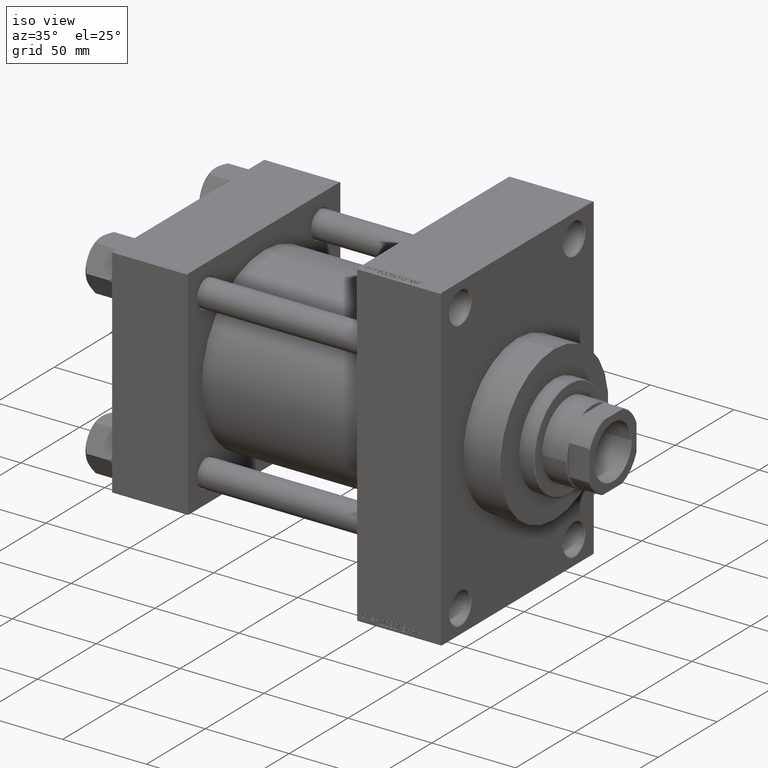
[diagram: clean part render]
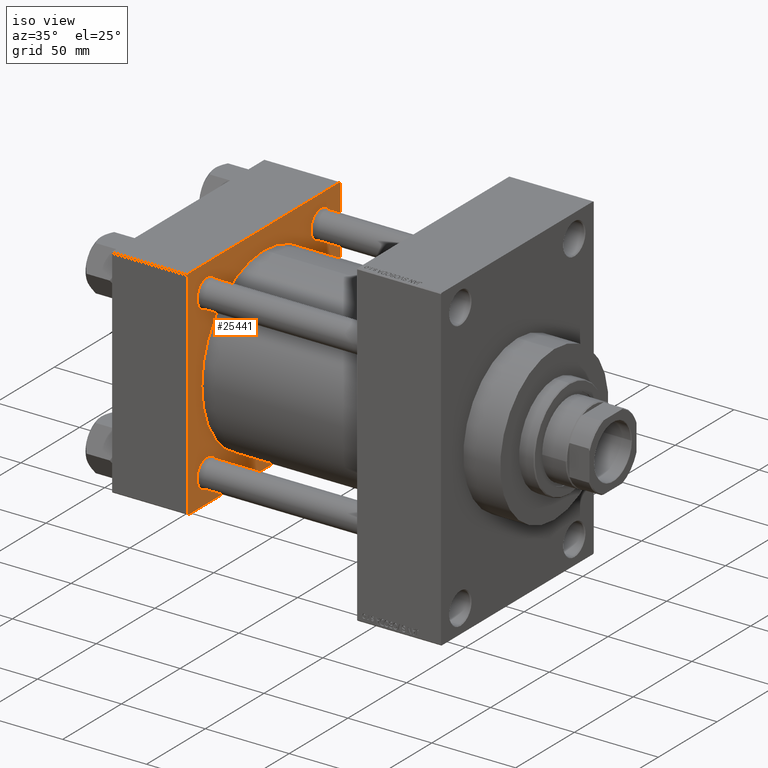
[diagram: same view with one face highlighted and labeled with its STEP entity id]
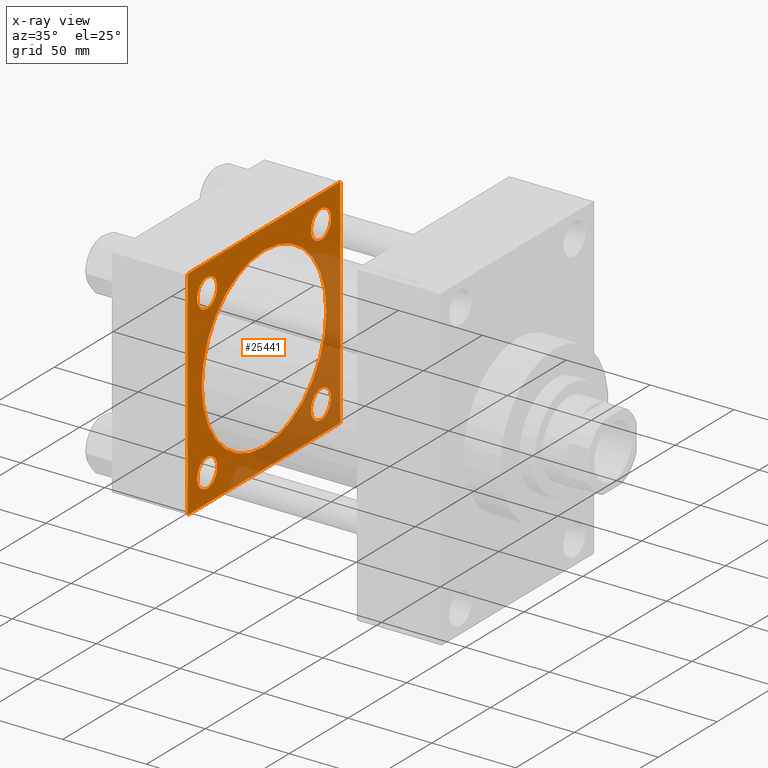
[diagram: x-ray of the same camera — body ghosted, the highlighted face saturated]
A machine part, iso view. The second image highlights one B-rep face of the part: STEP entity #25441.
The next image is the same camera in x-ray: the body ghosted, the highlighted face saturated — about 34% of this face is hidden behind the body in this view.
In plain terms, the highlighted planar face has unit normal (-1, 0, 0).
Its self-contained STEP definition (entity closure, byte-faithful):
#676 = VECTOR ( 'NONE', #15679, 1000.000000000000114 ) ;
#763 = CARTESIAN_POINT ( 'NONE',  ( 45.00000000000000000, -65.00000000000000000, 65.00000000000000000 ) ) ;
#1618 = FACE_BOUND ( 'NONE', #37617, .T. ) ;
#1727 = VERTEX_POINT ( 'NONE', #39099 ) ;
#1959 = LINE ( 'NONE', #20765, #12129 ) ;
#2046 = AXIS2_PLACEMENT_3D ( 'NONE', #40862, #25212, #7127 ) ;
#2229 = ORIENTED_EDGE ( 'NONE', *, *, #28335, .T. ) ;
#2654 = ORIENTED_EDGE ( 'NONE', *, *, #8936, .F. ) ;
#2858 = EDGE_CURVE ( 'NONE', #25911, #19225, #37173, .T. ) ;
#2925 = ORIENTED_EDGE ( 'NONE', *, *, #46715, .T. ) ;
#3209 = DIRECTION ( 'NONE',  ( 0.000000000000000000, 0.000000000000000000, 1.000000000000000000 ) ) ;
#3232 = CARTESIAN_POINT ( 'NONE',  ( 45.00000000000000000, 48.45000000000000995, 48.45000000000001705 ) ) ;
#3279 = EDGE_CURVE ( 'NONE', #5673, #31249, #30806, .T. ) ;
#4143 = DIRECTION ( 'NONE',  ( 0.000000000000000000, 0.000000000000000000, -1.000000000000000000 ) ) ;
#4632 = EDGE_CURVE ( 'NONE', #13992, #6380, #6419, .T. ) ;
#4764 = FACE_BOUND ( 'NONE', #10822, .T. ) ;
#5038 = ORIENTED_EDGE ( 'NONE', *, *, #25068, .T. ) ;
#5528 = DIRECTION ( 'NONE',  ( 0.000000000000000000, -1.000000000000000000, -1.067522139062650425E-16 ) ) ;
#5603 = VERTEX_POINT ( 'NONE', #30971 ) ;
#5673 = VERTEX_POINT ( 'NONE', #34598 ) ;
#6380 = VERTEX_POINT ( 'NONE', #12314 ) ;
#6419 = LINE ( 'NONE', #10037, #21596 ) ;
#6494 = ORIENTED_EDGE ( 'NONE', *, *, #31416, .T. ) ;
#6801 = VERTEX_POINT ( 'NONE', #34185 ) ;
#6941 = EDGE_CURVE ( 'NONE', #5603, #35964, #25004, .T. ) ;
#7098 = VERTEX_POINT ( 'NONE', #9725 ) ;
#7127 = DIRECTION ( 'NONE',  ( 0.000000000000000000, 0.000000000000000000, 1.000000000000000000 ) ) ;
#7218 = EDGE_LOOP ( 'NONE', ( #32874, #22260 ) ) ;
#7492 = DIRECTION ( 'NONE',  ( -0.000000000000000000, 0.7071067811865474617, 0.7071067811865474617 ) ) ;
#7780 = VERTEX_POINT ( 'NONE', #40149 ) ;
#8385 = FACE_BOUND ( 'NONE', #7218, .T. ) ;
#8670 = EDGE_CURVE ( 'NONE', #7780, #6380, #36662, .T. ) ;
#8936 = EDGE_CURVE ( 'NONE', #7780, #25013, #24084, .T. ) ;
#9054 = ORIENTED_EDGE ( 'NONE', *, *, #2858, .T. ) ;
#9123 = CARTESIAN_POINT ( 'NONE',  ( 45.00000000000000000, 48.45000000000000995, -48.45000000000001705 ) ) ;
#9290 = CARTESIAN_POINT ( 'NONE',  ( 45.00000000000000000, -48.44999999999999574, -48.45000000000003126 ) ) ;
#9372 = CARTESIAN_POINT ( 'NONE',  ( 45.00000000000000000, -2.602085213965210642E-15, 0.000000000000000000 ) ) ;
#9718 = LINE ( 'NONE', #36866, #45172 ) ;
#9725 = CARTESIAN_POINT ( 'NONE',  ( 45.00000000000000000, -48.44999999999999574, 39.95000000000004547 ) ) ;
#9841 = CARTESIAN_POINT ( 'NONE',  ( 45.00000000000000000, -48.44999999999999574, 48.45000000000003126 ) ) ;
#9933 = CARTESIAN_POINT ( 'NONE',  ( 45.00000000000000000, 48.45000000000000995, -39.95000000000003126 ) ) ;
#10037 = CARTESIAN_POINT ( 'NONE',  ( 45.00000000000000000, 65.00000000000000000, 65.00000000000001421 ) ) ;
#10504 = DIRECTION ( 'NONE',  ( 0.000000000000000000, 0.000000000000000000, -1.000000000000000000 ) ) ;
#10541 = EDGE_CURVE ( 'NONE', #29911, #19939, #14050, .T. ) ;
#10559 = CARTESIAN_POINT ( 'NONE',  ( 45.00000000000000000, -48.44999999999999574, 56.95000000000000995 ) ) ;
#10822 = EDGE_LOOP ( 'NONE', ( #26075, #17868 ) ) ;
#10908 = AXIS2_PLACEMENT_3D ( 'NONE', #9372, #19956, #23827 ) ;
#10936 = DIRECTION ( 'NONE',  ( -1.000000000000000000, 0.000000000000000000, -0.000000000000000000 ) ) ;
#12129 = VECTOR ( 'NONE', #20997, 1000.000000000000000 ) ;
#12314 = CARTESIAN_POINT ( 'NONE',  ( 45.00000000000000000, 65.00000000000000000, -64.49999999999995737 ) ) ;
#12937 = VERTEX_POINT ( 'NONE', #45735 ) ;
#13416 = EDGE_CURVE ( 'NONE', #1727, #6801, #28775, .T. ) ;
#13447 = DIRECTION ( 'NONE',  ( 0.000000000000000000, 0.000000000000000000, 1.000000000000000000 ) ) ;
#13672 = CIRCLE ( 'NONE', #45212, 8.499999999999980460 ) ;
#13992 = VERTEX_POINT ( 'NONE', #36575 ) ;
#14050 = CIRCLE ( 'NONE', #14827, 8.499999999999980460 ) ;
#14145 = VERTEX_POINT ( 'NONE', #18952 ) ;
#14250 = EDGE_LOOP ( 'NONE', ( #44821, #19632 ) ) ;
#14548 = CARTESIAN_POINT ( 'NONE',  ( 45.00000000000000000, -64.49999999999994316, -65.00000000000000000 ) ) ;
#14827 = AXIS2_PLACEMENT_3D ( 'NONE', #3232, #21787, #17700 ) ;
#15635 = ORIENTED_EDGE ( 'NONE', *, *, #4632, .F. ) ;
#15679 = DIRECTION ( 'NONE',  ( 0.000000000000000000, -0.7071067811865474617, 0.7071067811865474617 ) ) ;
#16085 = FACE_BOUND ( 'NONE', #14250, .T. ) ;
#16502 = DIRECTION ( 'NONE',  ( 0.000000000000000000, 0.000000000000000000, 1.000000000000000000 ) ) ;
#17700 = DIRECTION ( 'NONE',  ( 0.000000000000000000, 0.000000000000000000, 1.000000000000000000 ) ) ;
#17868 = ORIENTED_EDGE ( 'NONE', *, *, #46949, .T. ) ;
#18292 = CIRCLE ( 'NONE', #20589, 8.499999999999980460 ) ;
#18637 = DIRECTION ( 'NONE',  ( 0.000000000000000000, 0.000000000000000000, 1.000000000000000000 ) ) ;
#18952 = CARTESIAN_POINT ( 'NONE',  ( 45.00000000000000000, -64.49999999999997158, 65.00000000000000000 ) ) ;
#19225 = VERTEX_POINT ( 'NONE', #32366 ) ;
#19256 = VECTOR ( 'NONE', #4143, 1000.000000000000000 ) ;
#19532 = AXIS2_PLACEMENT_3D ( 'NONE', #9290, #46644, #16502 ) ;
#19632 = ORIENTED_EDGE ( 'NONE', *, *, #31144, .F. ) ;
#19939 = VERTEX_POINT ( 'NONE', #43874 ) ;
#19956 = DIRECTION ( 'NONE',  ( 1.000000000000000000, -0.000000000000000000, 0.000000000000000000 ) ) ;
#20589 = AXIS2_PLACEMENT_3D ( 'NONE', #24335, #42170, #42417 ) ;
#20765 = CARTESIAN_POINT ( 'NONE',  ( 45.00000000000000000, -65.00000000000000000, 64.50000000000000000 ) ) ;
#20914 = DIRECTION ( 'NONE',  ( 0.000000000000000000, 0.000000000000000000, 1.000000000000000000 ) ) ;
#20997 = DIRECTION ( 'NONE',  ( -0.000000000000000000, -0.7071067811865672237, -0.7071067811865279218 ) ) ;
#21596 = VECTOR ( 'NONE', #10504, 1000.000000000000000 ) ;
#21661 = EDGE_LOOP ( 'NONE', ( #2654, #36254, #15635, #6494, #2229, #2925, #9054, #43960 ) ) ;
#21787 = DIRECTION ( 'NONE',  ( -1.000000000000000000, 0.000000000000000000, -0.000000000000000000 ) ) ;
#22222 = AXIS2_PLACEMENT_3D ( 'NONE', #31147, #45866, #42496 ) ;
#22260 = ORIENTED_EDGE ( 'NONE', *, *, #45196, .T. ) ;
#22261 = CARTESIAN_POINT ( 'NONE',  ( 45.00000000000000000, -48.44999999999999574, -48.45000000000003126 ) ) ;
#22443 = EDGE_CURVE ( 'NONE', #7098, #36601, #46702, .T. ) ;
#22684 = CARTESIAN_POINT ( 'NONE',  ( 45.00000000000000000, 48.45000000000000995, 39.95000000000003126 ) ) ;
#22866 = CIRCLE ( 'NONE', #2046, 8.499999999999980460 ) ;
#22928 = LINE ( 'NONE', #37160, #676 ) ;
#22981 = CARTESIAN_POINT ( 'NONE',  ( 45.00000000000000000, -65.00000000000000000, 64.50000000000000000 ) ) ;
#23092 = DIRECTION ( 'NONE',  ( -1.000000000000000000, 0.000000000000000000, -0.000000000000000000 ) ) ;
#23257 = LINE ( 'NONE', #30726, #23762 ) ;
#23762 = VECTOR ( 'NONE', #45668, 1000.000000000000000 ) ;
#23827 = DIRECTION ( 'NONE',  ( 0.000000000000000000, 0.000000000000000000, 1.000000000000000000 ) ) ;
#24084 = LINE ( 'NONE', #31787, #47122 ) ;
#24335 = CARTESIAN_POINT ( 'NONE',  ( 45.00000000000000000, 48.45000000000000995, 48.45000000000001705 ) ) ;
#25004 = CIRCLE ( 'NONE', #32188, 8.499999999999980460 ) ;
#25013 = VERTEX_POINT ( 'NONE', #14548 ) ;
#25068 = EDGE_CURVE ( 'NONE', #6801, #1727, #13672, .T. ) ;
#25212 = DIRECTION ( 'NONE',  ( -1.000000000000000000, 0.000000000000000000, -0.000000000000000000 ) ) ;
#25441 = ADVANCED_FACE ( 'NONE', ( #30316, #1618, #8385, #4764, #16085, #34646 ), #26953, .F. ) ;
#25634 = CARTESIAN_POINT ( 'NONE',  ( 45.00000000000000000, 48.45000000000000995, -48.45000000000001705 ) ) ;
#25911 = VERTEX_POINT ( 'NONE', #22981 ) ;
#26075 = ORIENTED_EDGE ( 'NONE', *, *, #10541, .T. ) ;
#26953 = PLANE ( 'NONE',  #35992 ) ;
#27251 = ORIENTED_EDGE ( 'NONE', *, *, #6941, .T. ) ;
#27969 = ORIENTED_EDGE ( 'NONE', *, *, #13416, .T. ) ;
#28335 = EDGE_CURVE ( 'NONE', #12937, #14145, #23257, .T. ) ;
#28405 = DIRECTION ( 'NONE',  ( -1.000000000000000000, 0.000000000000000000, -0.000000000000000000 ) ) ;
#28718 = CARTESIAN_POINT ( 'NONE',  ( 45.00000000000000000, 65.00000000000000000, -64.49999999999995737 ) ) ;
#28775 = CIRCLE ( 'NONE', #19532, 8.499999999999980460 ) ;
#29911 = VERTEX_POINT ( 'NONE', #22684 ) ;
#29950 = DIRECTION ( 'NONE',  ( -1.000000000000000000, 0.000000000000000000, -0.000000000000000000 ) ) ;
#30316 = FACE_BOUND ( 'NONE', #39882, .T. ) ;
#30531 = CIRCLE ( 'NONE', #42765, 8.499999999999980460 ) ;
#30726 = CARTESIAN_POINT ( 'NONE',  ( 45.00000000000000000, 65.00000000000000000, 65.00000000000001421 ) ) ;
#30806 = CIRCLE ( 'NONE', #10908, 53.00000000000000711 ) ;
#30971 = CARTESIAN_POINT ( 'NONE',  ( 45.00000000000000000, 48.45000000000000995, -56.94999999999999574 ) ) ;
#31144 = EDGE_CURVE ( 'NONE', #31249, #5673, #38386, .T. ) ;
#31147 = CARTESIAN_POINT ( 'NONE',  ( 45.00000000000000000, -2.602085213965210642E-15, 0.000000000000000000 ) ) ;
#31249 = VERTEX_POINT ( 'NONE', #36452 ) ;
#31416 = EDGE_CURVE ( 'NONE', #13992, #12937, #22928, .T. ) ;
#31787 = CARTESIAN_POINT ( 'NONE',  ( 45.00000000000000000, 65.00000000000000000, -64.99999999999998579 ) ) ;
#32188 = AXIS2_PLACEMENT_3D ( 'NONE', #9123, #28405, #20914 ) ;
#32366 = CARTESIAN_POINT ( 'NONE',  ( 45.00000000000000000, -65.00000000000000000, -64.49999999999991473 ) ) ;
#32874 = ORIENTED_EDGE ( 'NONE', *, *, #22443, .T. ) ;
#33240 = DIRECTION ( 'NONE',  ( 0.000000000000000000, 0.7071067811865279218, -0.7071067811865671127 ) ) ;
#34185 = CARTESIAN_POINT ( 'NONE',  ( 45.00000000000000000, -48.44999999999999574, -39.95000000000004547 ) ) ;
#34366 = AXIS2_PLACEMENT_3D ( 'NONE', #9841, #46714, #13447 ) ;
#34598 = CARTESIAN_POINT ( 'NONE',  ( 45.00000000000000000, -2.602085213965210642E-15, 53.00000000000000711 ) ) ;
#34646 = FACE_OUTER_BOUND ( 'NONE', #21661, .T. ) ;
#35964 = VERTEX_POINT ( 'NONE', #9933 ) ;
#35992 = AXIS2_PLACEMENT_3D ( 'NONE', #38021, #23092, #45978 ) ;
#36254 = ORIENTED_EDGE ( 'NONE', *, *, #8670, .T. ) ;
#36452 = CARTESIAN_POINT ( 'NONE',  ( 45.00000000000000000, 3.888542821515762466E-15, -53.00000000000000711 ) ) ;
#36575 = CARTESIAN_POINT ( 'NONE',  ( 45.00000000000000000, 65.00000000000000000, 64.49999999999998579 ) ) ;
#36601 = VERTEX_POINT ( 'NONE', #10559 ) ;
#36662 = LINE ( 'NONE', #28718, #40924 ) ;
#36866 = CARTESIAN_POINT ( 'NONE',  ( 45.00000000000000000, -64.49999999999994316, -65.00000000000000000 ) ) ;
#37160 = CARTESIAN_POINT ( 'NONE',  ( 45.00000000000000000, 64.49999999999997158, 65.00000000000001421 ) ) ;
#37173 = LINE ( 'NONE', #763, #19256 ) ;
#37617 = EDGE_LOOP ( 'NONE', ( #27251, #37973 ) ) ;
#37973 = ORIENTED_EDGE ( 'NONE', *, *, #42191, .T. ) ;
#38021 = CARTESIAN_POINT ( 'NONE',  ( 45.00000000000000000, 0.000000000000000000, 0.000000000000000000 ) ) ;
#38386 = CIRCLE ( 'NONE', #22222, 53.00000000000000711 ) ;
#39099 = CARTESIAN_POINT ( 'NONE',  ( 45.00000000000000000, -48.44999999999999574, -56.95000000000000995 ) ) ;
#39882 = EDGE_LOOP ( 'NONE', ( #27969, #5038 ) ) ;
#40149 = CARTESIAN_POINT ( 'NONE',  ( 45.00000000000000000, 64.49999999999997158, -64.99999999999998579 ) ) ;
#40862 = CARTESIAN_POINT ( 'NONE',  ( 45.00000000000000000, -48.44999999999999574, 48.45000000000003126 ) ) ;
#40893 = EDGE_CURVE ( 'NONE', #19225, #25013, #9718, .T. ) ;
#40924 = VECTOR ( 'NONE', #7492, 1000.000000000000114 ) ;
#42170 = DIRECTION ( 'NONE',  ( -1.000000000000000000, 0.000000000000000000, -0.000000000000000000 ) ) ;
#42191 = EDGE_CURVE ( 'NONE', #35964, #5603, #30531, .T. ) ;
#42417 = DIRECTION ( 'NONE',  ( 0.000000000000000000, 0.000000000000000000, 1.000000000000000000 ) ) ;
#42496 = DIRECTION ( 'NONE',  ( 0.000000000000000000, 0.000000000000000000, 1.000000000000000000 ) ) ;
#42765 = AXIS2_PLACEMENT_3D ( 'NONE', #25634, #29950, #3209 ) ;
#43874 = CARTESIAN_POINT ( 'NONE',  ( 45.00000000000000000, 48.45000000000000995, 56.94999999999999574 ) ) ;
#43960 = ORIENTED_EDGE ( 'NONE', *, *, #40893, .T. ) ;
#44821 = ORIENTED_EDGE ( 'NONE', *, *, #3279, .F. ) ;
#45172 = VECTOR ( 'NONE', #33240, 1000.000000000000000 ) ;
#45196 = EDGE_CURVE ( 'NONE', #36601, #7098, #22866, .T. ) ;
#45212 = AXIS2_PLACEMENT_3D ( 'NONE', #22261, #10936, #18637 ) ;
#45668 = DIRECTION ( 'NONE',  ( 0.000000000000000000, -1.000000000000000000, -1.067522139062650425E-16 ) ) ;
#45735 = CARTESIAN_POINT ( 'NONE',  ( 45.00000000000000000, 64.49999999999997158, 65.00000000000001421 ) ) ;
#45866 = DIRECTION ( 'NONE',  ( 1.000000000000000000, -0.000000000000000000, 0.000000000000000000 ) ) ;
#45978 = DIRECTION ( 'NONE',  ( -0.000000000000000000, 0.000000000000000000, 1.000000000000000000 ) ) ;
#46644 = DIRECTION ( 'NONE',  ( -1.000000000000000000, 0.000000000000000000, -0.000000000000000000 ) ) ;
#46702 = CIRCLE ( 'NONE', #34366, 8.499999999999980460 ) ;
#46714 = DIRECTION ( 'NONE',  ( -1.000000000000000000, 0.000000000000000000, -0.000000000000000000 ) ) ;
#46715 = EDGE_CURVE ( 'NONE', #14145, #25911, #1959, .T. ) ;
#46949 = EDGE_CURVE ( 'NONE', #19939, #29911, #18292, .T. ) ;
#47122 = VECTOR ( 'NONE', #5528, 1000.000000000000000 ) ;